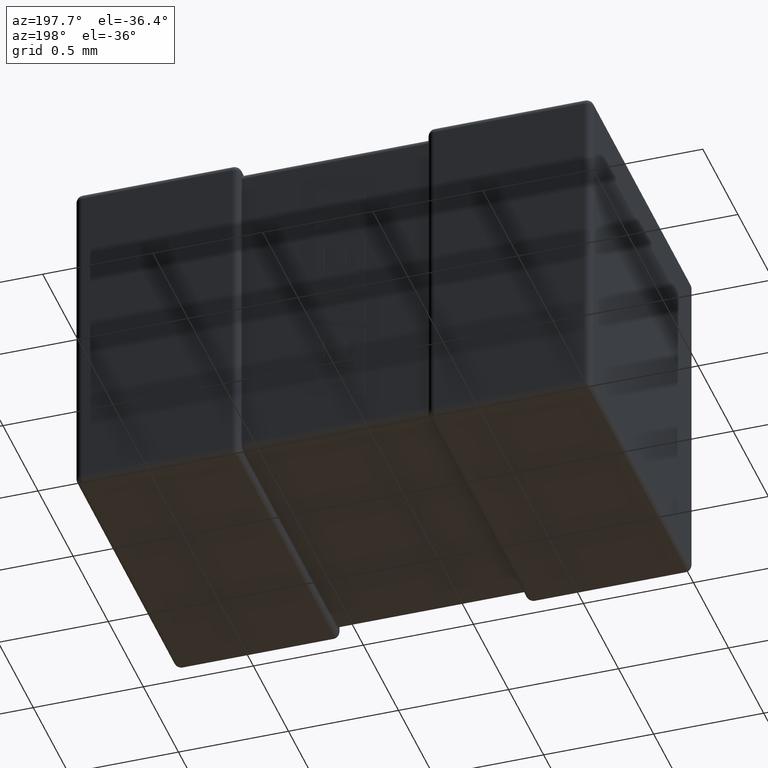
[diagram: clean part render]
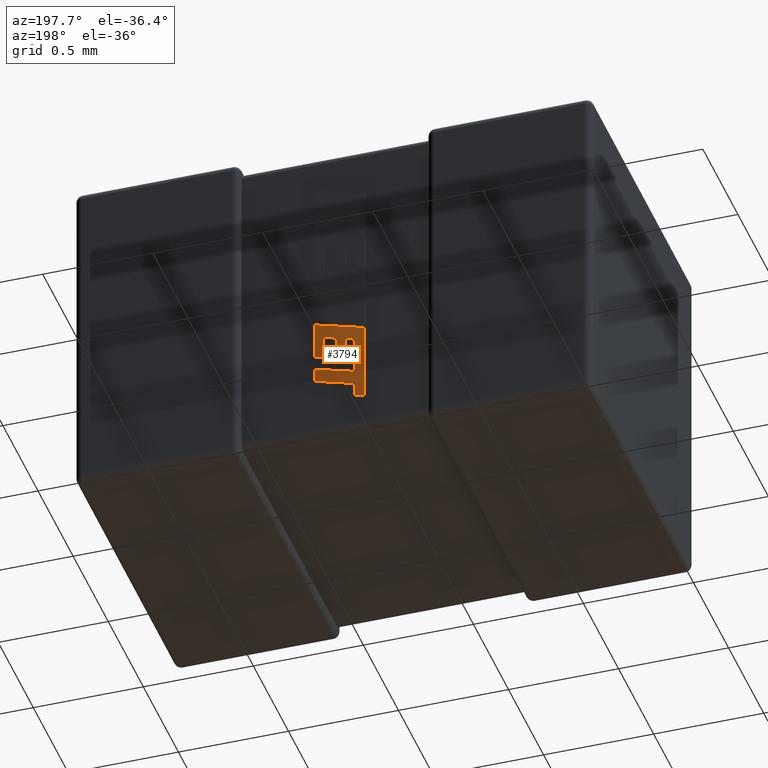
[diagram: same view with one face highlighted and labeled with its STEP entity id]
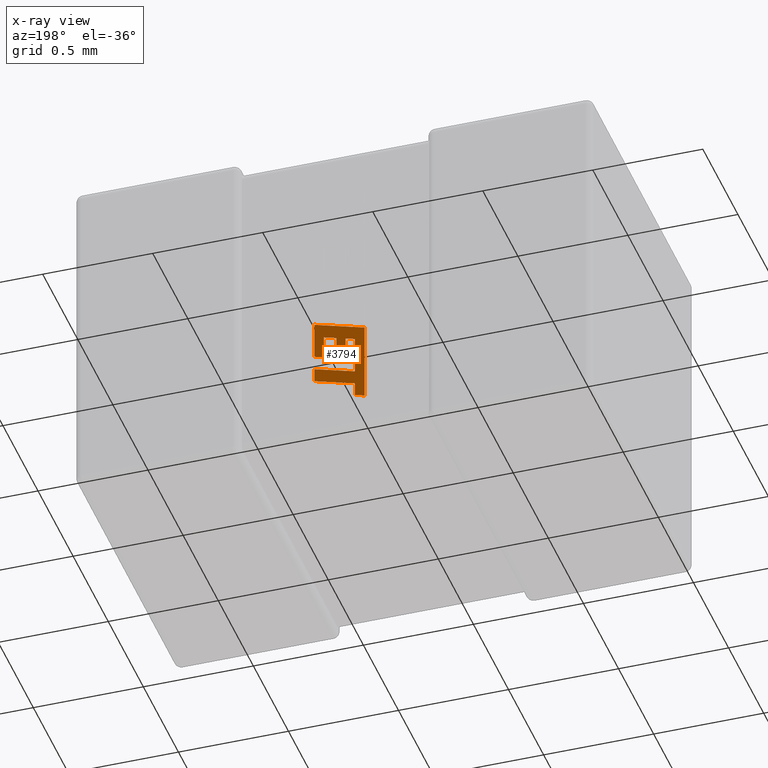
[diagram: x-ray of the same camera — body ghosted, the highlighted face saturated]
A machine part, auxiliary view. The second image highlights one B-rep face of the part: STEP entity #3794.
The next image is the same camera in x-ray: the body ghosted, the highlighted face saturated — about 0% of this face is hidden behind the body in this view.
In plain terms, the highlighted planar face has unit normal (0, 1, 0).
Its self-contained STEP definition (entity closure, byte-faithful):
#17 = CARTESIAN_POINT ( 'NONE',  ( 1.225639842472818541, 1.422759999999999803, -1.110396224602928417 ) ) ;
#44 = VERTEX_POINT ( 'NONE', #2036 ) ;
#116 = CARTESIAN_POINT ( 'NONE',  ( 1.041132956314514857, 1.422759999999999803, -0.9914748506207977652 ) ) ;
#121 = LINE ( 'NONE', #4529, #338 ) ;
#123 = DIRECTION ( 'NONE',  ( 0.000000000000000000, 1.000000000000000000, 0.000000000000000000 ) ) ;
#131 = LINE ( 'NONE', #4390, #2214 ) ;
#157 = DIRECTION ( 'NONE',  ( 7.938847109757214563E-05, 0.000000000000000000, -0.9999999968487351953 ) ) ;
#225 = CARTESIAN_POINT ( 'NONE',  ( 1.085129846205633797, 1.422759999999999803, -1.217345090345971270 ) ) ;
#246 = CARTESIAN_POINT ( 'NONE',  ( 1.225639842472818541, 1.422759999999999803, -1.003132803372474902 ) ) ;
#332 = VERTEX_POINT ( 'NONE', #1129 ) ;
#338 = VECTOR ( 'NONE', #3409, 1000.000000000000000 ) ;
#390 = EDGE_CURVE ( 'NONE', #4035, #4054, #3418, .T. ) ;
#394 = CARTESIAN_POINT ( 'NONE',  ( 1.041132956314514857, 1.422759999999999803, -1.357273782712564048 ) ) ;
#413 = EDGE_CURVE ( 'NONE', #2919, #904, #1640, .T. ) ;
#437 = EDGE_CURVE ( 'NONE', #4054, #3986, #1614, .T. ) ;
#455 = CARTESIAN_POINT ( 'NONE',  ( 1.084807669329675317, 1.422759999999999803, -1.148070826337084016 ) ) ;
#517 = ORIENTED_EDGE ( 'NONE', *, *, #4130, .T. ) ;
#665 = ORIENTED_EDGE ( 'NONE', *, *, #1497, .T. ) ;
#715 = VECTOR ( 'NONE', #3914, 1000.000000000000114 ) ;
#809 = CARTESIAN_POINT ( 'NONE',  ( -0.2601923135456278291, 1.422759999999999581, 0.003507179810070972133 ) ) ;
#830 = PLANE ( 'NONE',  #4185 ) ;
#844 = CARTESIAN_POINT ( 'NONE',  ( 1.169014311898541880, 1.422759999999999803, -1.019298461156342261 ) ) ;
#882 = CARTESIAN_POINT ( 'NONE',  ( 1.169014311898541880, 1.422759999999999803, -1.117072560896706479 ) ) ;
#895 = VECTOR ( 'NONE', #3446, 1000.000000000000114 ) ;
#904 = VERTEX_POINT ( 'NONE', #1545 ) ;
#950 = CARTESIAN_POINT ( 'NONE',  ( 1.085134799085710311, 1.422759999999999803, -1.344628413949363610 ) ) ;
#957 = DIRECTION ( 'NONE',  ( -0.9610876102172832836, 0.000000000000000000, -0.2762437428917279836 ) ) ;
#962 = CARTESIAN_POINT ( 'NONE',  ( 1.126897133544126905, 1.422759999999999803, -1.129104654719558010 ) ) ;
#998 = ORIENTED_EDGE ( 'NONE', *, *, #2561, .T. ) ;
#1020 = VECTOR ( 'NONE', #2961, 1000.000000000000000 ) ;
#1037 = DIRECTION ( 'NONE',  ( 0.000000000000000000, 0.000000000000000000, -1.000000000000000000 ) ) ;
#1129 = CARTESIAN_POINT ( 'NONE',  ( 1.041132956314514857, 1.422759999999999803, -0.9914748506207977652 ) ) ;
#1163 = VECTOR ( 'NONE', #2253, 1000.000000000000114 ) ;
#1189 = DIRECTION ( 'NONE',  ( 0.000000000000000000, 0.000000000000000000, -1.000000000000000000 ) ) ;
#1242 = ORIENTED_EDGE ( 'NONE', *, *, #1847, .T. ) ;
#1248 = EDGE_CURVE ( 'NONE', #3104, #1322, #131, .T. ) ;
#1273 = CARTESIAN_POINT ( 'NONE',  ( 1.126897133544126905, 1.422759999999999803, -1.031316697909258950 ) ) ;
#1308 = VECTOR ( 'NONE', #2643, 1000.000000000000227 ) ;
#1322 = VERTEX_POINT ( 'NONE', #3040 ) ;
#1334 = EDGE_CURVE ( 'NONE', #904, #1429, #2592, .T. ) ;
#1382 = VECTOR ( 'NONE', #2099, 1000.000000000000227 ) ;
#1386 = VECTOR ( 'NONE', #957, 1000.000000000000227 ) ;
#1398 = ORIENTED_EDGE ( 'NONE', *, *, #1906, .T. ) ;
#1405 = LINE ( 'NONE', #3562, #4659 ) ;
#1409 = VECTOR ( 'NONE', #3557, 1000.000000000000000 ) ;
#1422 = EDGE_CURVE ( 'NONE', #2667, #3953, #1960, .T. ) ;
#1429 = VERTEX_POINT ( 'NONE', #455 ) ;
#1497 = EDGE_CURVE ( 'NONE', #1429, #4050, #4062, .T. ) ;
#1508 = LINE ( 'NONE', #1814, #1020 ) ;
#1527 = ORIENTED_EDGE ( 'NONE', *, *, #1815, .T. ) ;
#1545 = CARTESIAN_POINT ( 'NONE',  ( 1.084513899447020258, 1.422759999999999803, -1.043649490149650694 ) ) ;
#1614 = LINE ( 'NONE', #3552, #2057 ) ;
#1626 = VERTEX_POINT ( 'NONE', #3816 ) ;
#1640 = LINE ( 'NONE', #4204, #715 ) ;
#1661 = DIRECTION ( 'NONE',  ( 0.000000000000000000, 0.000000000000000000, 1.000000000000000000 ) ) ;
#1689 = DIRECTION ( 'NONE',  ( -0.9615825319869173438, 0.000000000000000000, -0.2745159998572558879 ) ) ;
#1719 = VECTOR ( 'NONE', #2787, 1000.000000000000114 ) ;
#1814 = CARTESIAN_POINT ( 'NONE',  ( 1.269000000000003681, 1.422759999999999803, -1.098092532209430150 ) ) ;
#1815 = EDGE_CURVE ( 'NONE', #1626, #4035, #4384, .T. ) ;
#1847 = EDGE_CURVE ( 'NONE', #44, #3104, #1508, .T. ) ;
#1906 = EDGE_CURVE ( 'NONE', #4106, #2667, #121, .T. ) ;
#1919 = DIRECTION ( 'NONE',  ( 0.000000000000000000, 0.000000000000000000, 1.000000000000000000 ) ) ;
#1960 = LINE ( 'NONE', #882, #1308 ) ;
#2036 = CARTESIAN_POINT ( 'NONE',  ( 1.269000000000003681, 1.422759999999999803, -1.098092532209430150 ) ) ;
#2057 = VECTOR ( 'NONE', #157, 1000.000000000000114 ) ;
#2099 = DIRECTION ( 'NONE',  ( -0.9610992334305258344, 0.000000000000000000, -0.2762033010288897361 ) ) ;
#2149 = ORIENTED_EDGE ( 'NONE', *, *, #437, .T. ) ;
#2174 = LINE ( 'NONE', #4363, #1382 ) ;
#2189 = VERTEX_POINT ( 'NONE', #4452 ) ;
#2214 = VECTOR ( 'NONE', #1919, 1000.000000000000000 ) ;
#2217 = ORIENTED_EDGE ( 'NONE', *, *, #4264, .T. ) ;
#2247 = VERTEX_POINT ( 'NONE', #394 ) ;
#2253 = DIRECTION ( 'NONE',  ( 0.002813301676014988168, 0.000000000000000000, -0.9999960426590095430 ) ) ;
#2452 = VECTOR ( 'NONE', #2990, 1000.000000000000114 ) ;
#2463 = CARTESIAN_POINT ( 'NONE',  ( 1.269000000000003681, 1.422759999999999803, -1.229391041238737214 ) ) ;
#2561 = EDGE_CURVE ( 'NONE', #1322, #4106, #3138, .T. ) ;
#2592 = LINE ( 'NONE', #3021, #1163 ) ;
#2643 = DIRECTION ( 'NONE',  ( -0.9615323037684311291, 0.000000000000000000, -0.2746918797667186607 ) ) ;
#2667 = VERTEX_POINT ( 'NONE', #3648 ) ;
#2766 = EDGE_CURVE ( 'NONE', #2247, #332, #3133, .T. ) ;
#2782 = CARTESIAN_POINT ( 'NONE',  ( 1.126897133544126905, 1.422759999999999803, -1.129104654719558010 ) ) ;
#2787 = DIRECTION ( 'NONE',  ( 0.9610664548998939516, 0.000000000000000000, 0.2763173343569854667 ) ) ;
#2841 = EDGE_LOOP ( 'NONE', ( #3482, #665, #4229, #1527, #4016, #2149, #3315, #4398, #517, #3180, #1242, #4068, #998, #1398, #4250, #2217, #4619 ) ) ;
#2919 = VERTEX_POINT ( 'NONE', #1273 ) ;
#2961 = DIRECTION ( 'NONE',  ( -0.9620200793798762140, 0.000000000000000000, -0.2729786930695082825 ) ) ;
#2990 = DIRECTION ( 'NONE',  ( 0.004650693823668812857, 0.000000000000000000, -0.9999891854650021505 ) ) ;
#3015 = EDGE_CURVE ( 'NONE', #2189, #44, #1405, .T. ) ;
#3021 = CARTESIAN_POINT ( 'NONE',  ( 1.084513899447020258, 1.422759999999999803, -1.043649490149650694 ) ) ;
#3040 = CARTESIAN_POINT ( 'NONE',  ( 1.225639842472818541, 1.422759999999999803, -1.003132803372474902 ) ) ;
#3090 = CARTESIAN_POINT ( 'NONE',  ( 1.041132956314514857, 1.422759999999999803, -1.357273782712564048 ) ) ;
#3104 = VERTEX_POINT ( 'NONE', #17 ) ;
#3133 = LINE ( 'NONE', #3090, #4136 ) ;
#3138 = LINE ( 'NONE', #246, #4205 ) ;
#3180 = ORIENTED_EDGE ( 'NONE', *, *, #3015, .T. ) ;
#3314 = LINE ( 'NONE', #116, #895 ) ;
#3315 = ORIENTED_EDGE ( 'NONE', *, *, #3712, .T. ) ;
#3389 = DIRECTION ( 'NONE',  ( 0.000000000000000000, 0.000000000000000000, 1.000000000000000000 ) ) ;
#3409 = DIRECTION ( 'NONE',  ( 0.000000000000000000, 0.000000000000000000, -1.000000000000000000 ) ) ;
#3418 = LINE ( 'NONE', #4137, #1386 ) ;
#3446 = DIRECTION ( 'NONE',  ( 0.9610348236706638403, 0.000000000000000000, 0.2764273280489756290 ) ) ;
#3482 = ORIENTED_EDGE ( 'NONE', *, *, #1334, .T. ) ;
#3508 = VECTOR ( 'NONE', #1189, 1000.000000000000000 ) ;
#3527 = EDGE_CURVE ( 'NONE', #4050, #1626, #3890, .T. ) ;
#3552 = CARTESIAN_POINT ( 'NONE',  ( 1.085129846206199566, 1.422759999999999803, -1.282240520256154648 ) ) ;
#3557 = DIRECTION ( 'NONE',  ( 0.000000000000000000, 0.000000000000000000, 1.000000000000000000 ) ) ;
#3562 = CARTESIAN_POINT ( 'NONE',  ( 1.269000000000003681, 1.422759999999999803, -0.9259322953616510032 ) ) ;
#3648 = CARTESIAN_POINT ( 'NONE',  ( 1.169014311898541880, 1.422759999999999803, -1.117072560896706479 ) ) ;
#3700 = CARTESIAN_POINT ( 'NONE',  ( 1.269000000000003681, 1.422759999999999803, -1.164480368551513267 ) ) ;
#3712 = EDGE_CURVE ( 'NONE', #3986, #2247, #2174, .T. ) ;
#3794 = ADVANCED_FACE ( 'NONE', ( #4084 ), #830, .T. ) ;
#3816 = CARTESIAN_POINT ( 'NONE',  ( 1.269000000000003681, 1.422759999999999803, -1.164480368551513267 ) ) ;
#3890 = LINE ( 'NONE', #225, #1719 ) ;
#3914 = DIRECTION ( 'NONE',  ( -0.9601763114346048011, 0.000000000000000000, -0.2793947940814874298 ) ) ;
#3924 = LINE ( 'NONE', #962, #1409 ) ;
#3953 = VERTEX_POINT ( 'NONE', #2782 ) ;
#3986 = VERTEX_POINT ( 'NONE', #950 ) ;
#4016 = ORIENTED_EDGE ( 'NONE', *, *, #390, .T. ) ;
#4035 = VERTEX_POINT ( 'NONE', #2463 ) ;
#4050 = VERTEX_POINT ( 'NONE', #4290 ) ;
#4054 = VERTEX_POINT ( 'NONE', #4660 ) ;
#4062 = LINE ( 'NONE', #4405, #2452 ) ;
#4068 = ORIENTED_EDGE ( 'NONE', *, *, #1248, .T. ) ;
#4084 = FACE_OUTER_BOUND ( 'NONE', #2841, .T. ) ;
#4106 = VERTEX_POINT ( 'NONE', #844 ) ;
#4130 = EDGE_CURVE ( 'NONE', #332, #2189, #3314, .T. ) ;
#4136 = VECTOR ( 'NONE', #1661, 1000.000000000000000 ) ;
#4137 = CARTESIAN_POINT ( 'NONE',  ( 1.269000000000003681, 1.422759999999999803, -1.229391041238737214 ) ) ;
#4185 = AXIS2_PLACEMENT_3D ( 'NONE', #809, #123, #3389 ) ;
#4204 = CARTESIAN_POINT ( 'NONE',  ( 1.126897133544126905, 1.422759999999999803, -1.031316697909258950 ) ) ;
#4205 = VECTOR ( 'NONE', #1689, 1000.000000000000227 ) ;
#4229 = ORIENTED_EDGE ( 'NONE', *, *, #3527, .T. ) ;
#4250 = ORIENTED_EDGE ( 'NONE', *, *, #1422, .T. ) ;
#4264 = EDGE_CURVE ( 'NONE', #3953, #2919, #3924, .T. ) ;
#4290 = CARTESIAN_POINT ( 'NONE',  ( 1.085129846205633797, 1.422759999999999803, -1.217345090345971270 ) ) ;
#4363 = CARTESIAN_POINT ( 'NONE',  ( 1.085134799085710311, 1.422759999999999803, -1.344628413949363610 ) ) ;
#4384 = LINE ( 'NONE', #3700, #3508 ) ;
#4390 = CARTESIAN_POINT ( 'NONE',  ( 1.225639842472818541, 1.422759999999999803, -1.110396224602928417 ) ) ;
#4398 = ORIENTED_EDGE ( 'NONE', *, *, #2766, .T. ) ;
#4405 = CARTESIAN_POINT ( 'NONE',  ( 1.084807669329675317, 1.422759999999999803, -1.148070826337084016 ) ) ;
#4452 = CARTESIAN_POINT ( 'NONE',  ( 1.269000000000003681, 1.422759999999999803, -0.9259322953616510032 ) ) ;
#4529 = CARTESIAN_POINT ( 'NONE',  ( 1.169014311898541880, 1.422759999999999803, -1.019298461156342261 ) ) ;
#4619 = ORIENTED_EDGE ( 'NONE', *, *, #413, .T. ) ;
#4659 = VECTOR ( 'NONE', #1037, 1000.000000000000000 ) ;
#4660 = CARTESIAN_POINT ( 'NONE',  ( 1.085129846206199566, 1.422759999999999803, -1.282240520256154648 ) ) ;